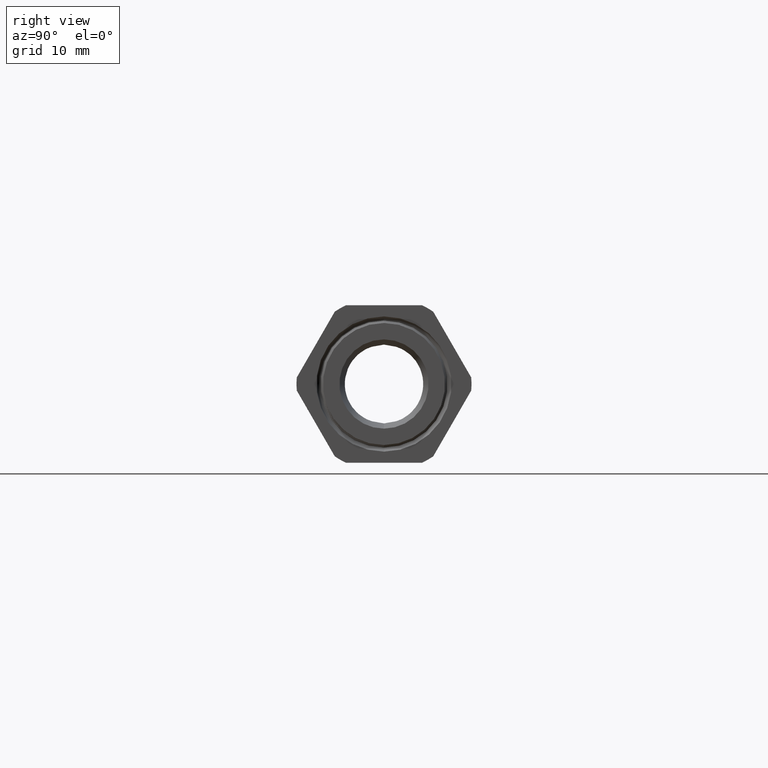
[diagram: clean part render]
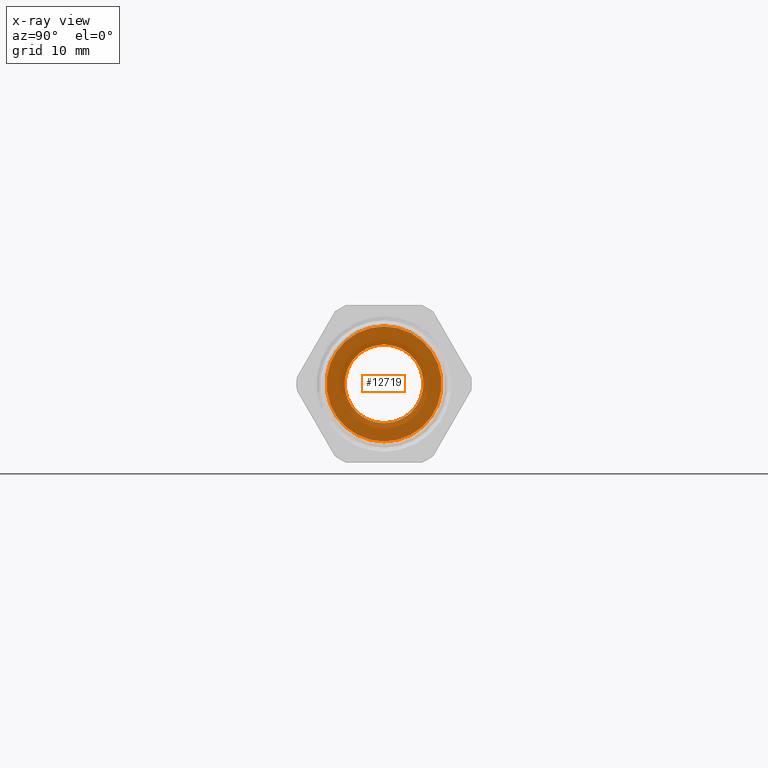
[diagram: x-ray — body ghosted, one internal face saturated and labeled with its STEP entity id]
A machine part, right view, then the same camera in x-ray: the body is ghosted and one INTERNAL B-rep face — a face not visible from any outside direction — is saturated and labeled: STEP entity #12719.
In plain terms, the highlighted planar face has unit normal (1, 0, 0).
Its self-contained STEP definition (entity closure, byte-faithful):
#359 = ORIENTED_EDGE ( 'NONE', *, *, #12707, .F. ) ;
#368 = EDGE_CURVE ( 'NONE', #12736, #12734, #2782, .T. ) ;
#369 = ORIENTED_EDGE ( 'NONE', *, *, #370, .F. ) ;
#370 = EDGE_CURVE ( 'NONE', #12700, #12699, #2777, .T. ) ;
#2773 = DIRECTION ( 'NONE',  ( 0.0000000000000000000, 0.0000000000000000000, -1.000000000000000000 ) ) ;
#2774 = DIRECTION ( 'NONE',  ( 1.000000000000000000, 0.0000000000000000000, 0.0000000000000000000 ) ) ;
#2775 = CARTESIAN_POINT ( 'NONE',  ( -1.263700787401574400, 0.0000000000000000000, 0.0000000000000000000 ) ) ;
#2776 = AXIS2_PLACEMENT_3D ( 'NONE', #2775, #2774, #2773 ) ;
#2777 = CIRCLE ( 'NONE', #2776, 0.2349999999999999600 ) ;
#2778 = DIRECTION ( 'NONE',  ( 0.0000000000000000000, 0.0000000000000000000, -1.000000000000000000 ) ) ;
#2779 = DIRECTION ( 'NONE',  ( 1.000000000000000000, 0.0000000000000000000, 0.0000000000000000000 ) ) ;
#2780 = CARTESIAN_POINT ( 'NONE',  ( -1.263700787401574400, 0.0000000000000000000, 0.0000000000000000000 ) ) ;
#2781 = AXIS2_PLACEMENT_3D ( 'NONE', #2780, #2779, #2778 ) ;
#2782 = CIRCLE ( 'NONE', #2781, 0.3430999999999999600 ) ;
#12699 = VERTEX_POINT ( 'NONE', #13569 ) ;
#12700 = VERTEX_POINT ( 'NONE', #13568 ) ;
#12707 = EDGE_CURVE ( 'NONE', #12699, #12700, #13552, .T. ) ;
#12709 = EDGE_LOOP ( 'NONE', ( #369, #359 ) ) ;
#12710 = ORIENTED_EDGE ( 'NONE', *, *, #12740, .T. ) ;
#12711 = ORIENTED_EDGE ( 'NONE', *, *, #368, .T. ) ;
#12716 = EDGE_LOOP ( 'NONE', ( #12710, #12711 ) ) ;
#12719 = ADVANCED_FACE ( 'NONE', ( #13600, #13599 ), #13598, .T. ) ;
#12734 = VERTEX_POINT ( 'NONE', #13627 ) ;
#12736 = VERTEX_POINT ( 'NONE', #13626 ) ;
#12740 = EDGE_CURVE ( 'NONE', #12734, #12736, #13621, .T. ) ;
#13548 = DIRECTION ( 'NONE',  ( 0.0000000000000000000, 0.0000000000000000000, -1.000000000000000000 ) ) ;
#13549 = DIRECTION ( 'NONE',  ( 1.000000000000000000, 0.0000000000000000000, 0.0000000000000000000 ) ) ;
#13550 = CARTESIAN_POINT ( 'NONE',  ( -1.263700787401574400, 0.0000000000000000000, 0.0000000000000000000 ) ) ;
#13551 = AXIS2_PLACEMENT_3D ( 'NONE', #13550, #13549, #13548 ) ;
#13552 = CIRCLE ( 'NONE', #13551, 0.2349999999999999600 ) ;
#13568 = CARTESIAN_POINT ( 'NONE',  ( -1.263700787401574400, 0.0000000000000000000, -0.2349999999999999600 ) ) ;
#13569 = CARTESIAN_POINT ( 'NONE',  ( -1.263700787401574400, 2.877919977996279200E-017, 0.2349999999999999600 ) ) ;
#13594 = DIRECTION ( 'NONE',  ( 0.0000000000000000000, 0.0000000000000000000, -1.000000000000000000 ) ) ;
#13595 = DIRECTION ( 'NONE',  ( 1.000000000000000000, 0.0000000000000000000, 0.0000000000000000000 ) ) ;
#13596 = CARTESIAN_POINT ( 'NONE',  ( -1.263700787401574400, 0.3430999999999999600, 0.0000000000000000000 ) ) ;
#13597 = AXIS2_PLACEMENT_3D ( 'NONE', #13596, #13595, #13594 ) ;
#13598 = PLANE ( 'NONE',  #13597 ) ;
#13599 = FACE_BOUND ( 'NONE', #12709, .T. ) ;
#13600 = FACE_OUTER_BOUND ( 'NONE', #12716, .T. ) ;
#13617 = DIRECTION ( 'NONE',  ( 0.0000000000000000000, 0.0000000000000000000, -1.000000000000000000 ) ) ;
#13618 = DIRECTION ( 'NONE',  ( 1.000000000000000000, 0.0000000000000000000, 0.0000000000000000000 ) ) ;
#13619 = CARTESIAN_POINT ( 'NONE',  ( -1.263700787401574400, 0.0000000000000000000, 0.0000000000000000000 ) ) ;
#13620 = AXIS2_PLACEMENT_3D ( 'NONE', #13619, #13618, #13617 ) ;
#13621 = CIRCLE ( 'NONE', #13620, 0.3430999999999999600 ) ;
#13626 = CARTESIAN_POINT ( 'NONE',  ( -1.263700787401574400, 4.201763167874567800E-017, 0.3430999999999999600 ) ) ;
#13627 = CARTESIAN_POINT ( 'NONE',  ( -1.263700787401574400, 0.0000000000000000000, -0.3430999999999999600 ) ) ;